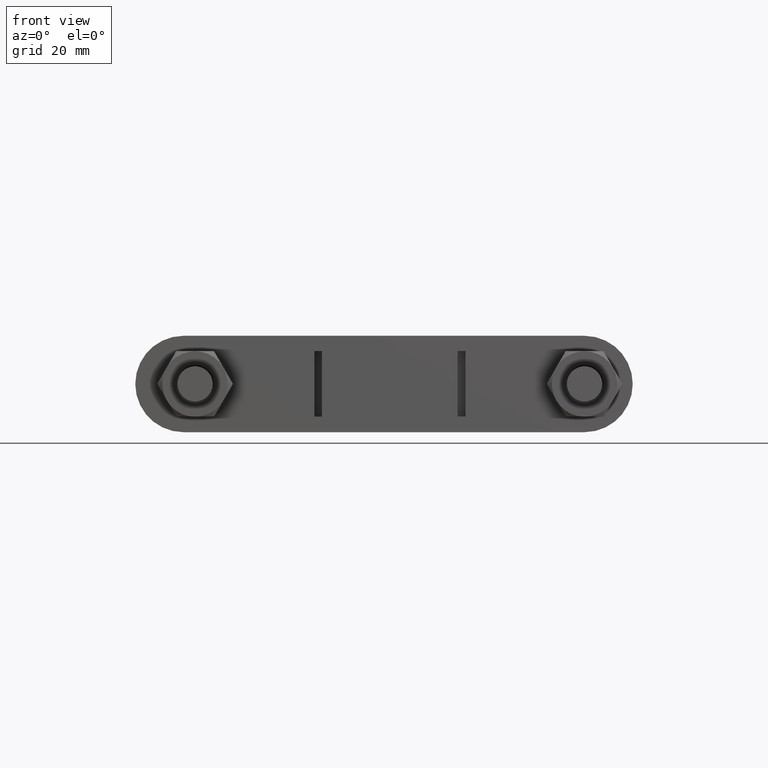
[diagram: clean part render]
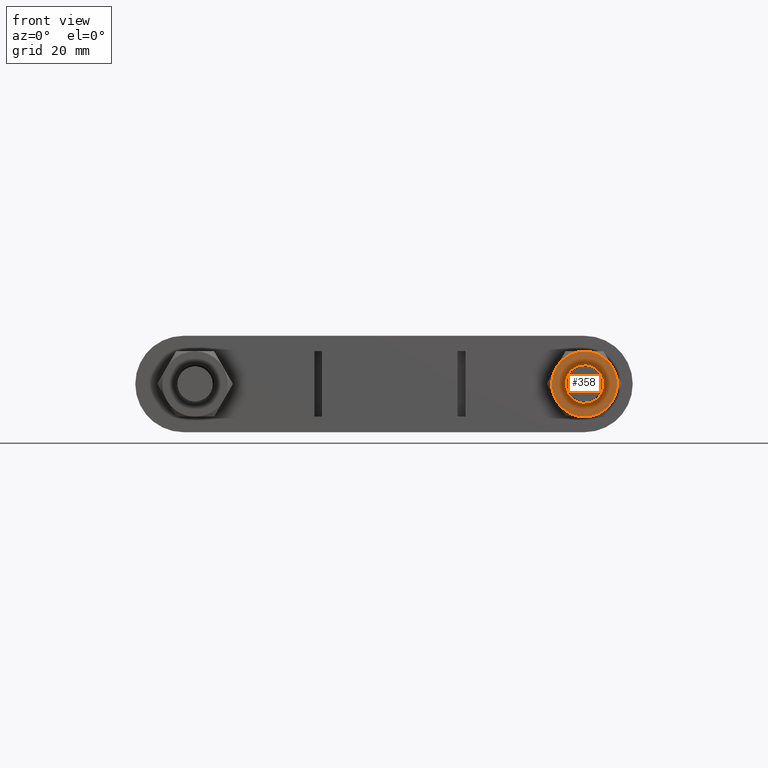
[diagram: same view with one face highlighted and labeled with its STEP entity id]
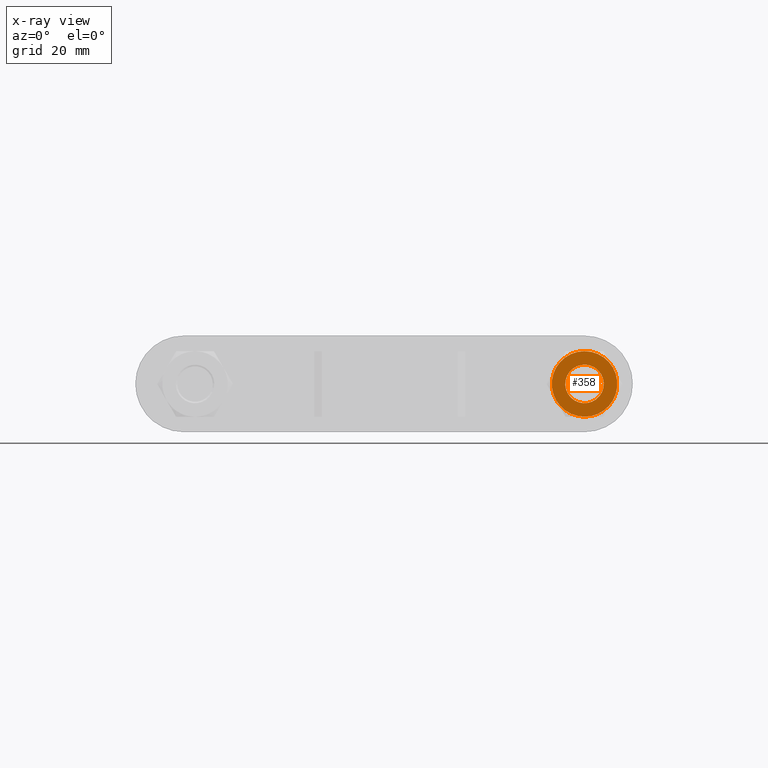
[diagram: x-ray of the same camera — body ghosted, the highlighted face saturated]
A machine part, front view. The second image highlights one B-rep face of the part: STEP entity #358.
The next image is the same camera in x-ray: the body ghosted, the highlighted face saturated — about 0% of this face is hidden behind the body in this view.
In plain terms, the highlighted planar face has unit normal (0, 1, 0).
Its self-contained STEP definition (entity closure, byte-faithful):
#358 = ADVANCED_FACE( '', ( #589, #590 ), #591, .F. );
#589 = FACE_OUTER_BOUND( '', #1660, .T. );
#590 = FACE_BOUND( '', #1661, .T. );
#591 = PLANE( '', #1662 );
#1660 = EDGE_LOOP( '', ( #2367, #2368, #2369, #2370, #2371, #2372 ) );
#1661 = EDGE_LOOP( '', ( #2373 ) );
#1662 = AXIS2_PLACEMENT_3D( '', #2374, #2375, #2376 );
#2367 = ORIENTED_EDGE( '', *, *, #2725, .F. );
#2368 = ORIENTED_EDGE( '', *, *, #2726, .F. );
#2369 = ORIENTED_EDGE( '', *, *, #2727, .F. );
#2370 = ORIENTED_EDGE( '', *, *, #2728, .F. );
#2371 = ORIENTED_EDGE( '', *, *, #2723, .F. );
#2372 = ORIENTED_EDGE( '', *, *, #2729, .F. );
#2373 = ORIENTED_EDGE( '', *, *, #2730, .T. );
#2374 = CARTESIAN_POINT( '', ( 50.5000000000000, 22.0000000000005, 1.48980220521235E-015 ) );
#2375 = DIRECTION( '', ( 2.44921270764475E-016, 1.00000000000000, 6.12303176911189E-017 ) );
#2376 = DIRECTION( '', ( 0.866025403813798, -2.42723201258839E-016, 0.499999999949149 ) );
#2723 = EDGE_CURVE( '', #3088, #3090, #3091, .T. );
#2725 = EDGE_CURVE( '', #3093, #3094, #3095, .T. );
#2726 = EDGE_CURVE( '', #3096, #3093, #3097, .T. );
#2727 = EDGE_CURVE( '', #3098, #3096, #3099, .T. );
#2728 = EDGE_CURVE( '', #3090, #3098, #3100, .T. );
#2729 = EDGE_CURVE( '', #3094, #3088, #3101, .T. );
#2730 = EDGE_CURVE( '', #3102, #3102, #3103, .T. );
#3088 = VERTEX_POINT( '', #3898 );
#3090 = VERTEX_POINT( '', #3905 );
#3091 = CIRCLE( '', #3906, 8.49999999999854 );
#3093 = VERTEX_POINT( '', #3915 );
#3094 = VERTEX_POINT( '', #3916 );
#3095 = CIRCLE( '', #3917, 8.49999999999854 );
#3096 = VERTEX_POINT( '', #3918 );
#3097 = CIRCLE( '', #3919, 8.49999999999854 );
#3098 = VERTEX_POINT( '', #3920 );
#3099 = CIRCLE( '', #3921, 8.49999999999854 );
#3100 = CIRCLE( '', #3922, 8.49999999999854 );
#3101 = CIRCLE( '', #3923, 8.49999999999854 );
#3102 = VERTEX_POINT( '', #3924 );
#3103 = CIRCLE( '', #3925, 4.99999999999914 );
#3898 = CARTESIAN_POINT( '', ( 43.1387840675840, 22.0000000000005, -4.24999999956703 ) );
#3905 = CARTESIAN_POINT( '', ( 43.1387840680833, 22.0000000000005, 4.25000000043110 ) );
#3906 = AXIS2_PLACEMENT_3D( '', #4340, #4341, #4342 );
#3915 = CARTESIAN_POINT( '', ( 57.8612159319167, 22.0000000000005, -4.25000000043110 ) );
#3916 = CARTESIAN_POINT( '', ( 50.4999999995007, 22.0000000000005, -8.49999999999814 ) );
#3917 = AXIS2_PLACEMENT_3D( '', #4343, #4344, #4345 );
#3918 = CARTESIAN_POINT( '', ( 57.8612159324160, 22.0000000000005, 4.24999999956704 ) );
#3919 = AXIS2_PLACEMENT_3D( '', #4346, #4347, #4348 );
#3920 = CARTESIAN_POINT( '', ( 50.5000000004993, 22.0000000000005, 8.49999999999814 ) );
#3921 = AXIS2_PLACEMENT_3D( '', #4349, #4350, #4351 );
#3922 = AXIS2_PLACEMENT_3D( '', #4352, #4353, #4354 );
#3923 = AXIS2_PLACEMENT_3D( '', #4355, #4356, #4357 );
#3924 = CARTESIAN_POINT( '', ( 54.8301270190682, 22.0000000000005, 2.49999999974532 ) );
#3925 = AXIS2_PLACEMENT_3D( '', #4358, #4359, #4360 );
#4340 = CARTESIAN_POINT( '', ( 50.5000000000000, 22.0000000000005, 1.48980220521235E-015 ) );
#4341 = DIRECTION( '', ( 2.44921270764475E-016, 1.00000000000000, 6.12303176911188E-017 ) );
#4342 = DIRECTION( '', ( 0.866025403813798, -2.42723201258839E-016, 0.499999999949149 ) );
#4343 = CARTESIAN_POINT( '', ( 50.5000000000000, 22.0000000000005, 1.48980220521235E-015 ) );
#4344 = DIRECTION( '', ( 2.44921270764475E-016, 1.00000000000000, 6.12303176911188E-017 ) );
#4345 = DIRECTION( '', ( 0.866025403813798, -2.42723201258839E-016, 0.499999999949149 ) );
#4346 = CARTESIAN_POINT( '', ( 50.5000000000000, 22.0000000000005, 1.48980220521235E-015 ) );
#4347 = DIRECTION( '', ( 2.44921270764475E-016, 1.00000000000000, 6.12303176911188E-017 ) );
#4348 = DIRECTION( '', ( 0.866025403813798, -2.42723201258839E-016, 0.499999999949149 ) );
#4349 = CARTESIAN_POINT( '', ( 50.5000000000000, 22.0000000000005, 1.48980220521235E-015 ) );
#4350 = DIRECTION( '', ( 2.44921270764475E-016, 1.00000000000000, 6.12303176911188E-017 ) );
#4351 = DIRECTION( '', ( 0.866025403813798, -2.42723201258839E-016, 0.499999999949149 ) );
#4352 = CARTESIAN_POINT( '', ( 50.5000000000000, 22.0000000000005, 1.48980220521235E-015 ) );
#4353 = DIRECTION( '', ( 2.44921270764475E-016, 1.00000000000000, 6.12303176911188E-017 ) );
#4354 = DIRECTION( '', ( 0.866025403813798, -2.42723201258839E-016, 0.499999999949149 ) );
#4355 = CARTESIAN_POINT( '', ( 50.5000000000000, 22.0000000000005, 1.48980220521235E-015 ) );
#4356 = DIRECTION( '', ( 2.44921270764475E-016, 1.00000000000000, 6.12303176911188E-017 ) );
#4357 = DIRECTION( '', ( 0.866025403813798, -2.42723201258839E-016, 0.499999999949149 ) );
#4358 = CARTESIAN_POINT( '', ( 50.5000000000000, 22.0000000000005, 1.48980220521235E-015 ) );
#4359 = DIRECTION( '', ( 2.44921270764475E-016, 1.00000000000000, 6.12303176911189E-017 ) );
#4360 = DIRECTION( '', ( 0.866025403813798, -2.42723201258839E-016, 0.499999999949149 ) );